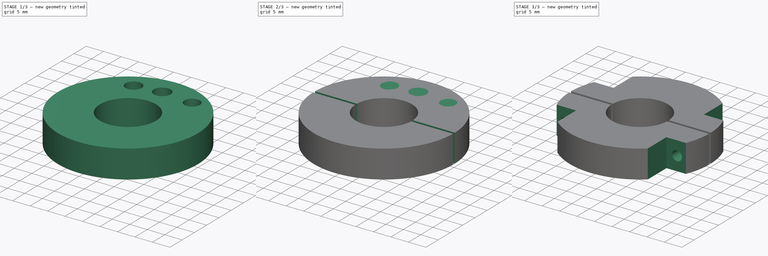
[diagram: build sequence overview — one tinted view per stage of 3, left to right]
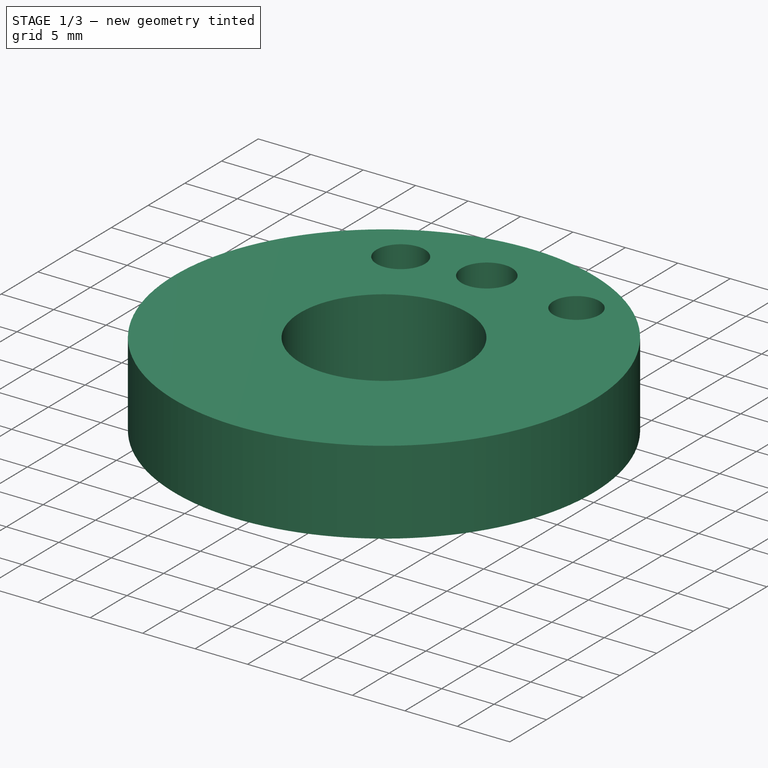
[diagram: stage 1 of 3 — iso view after this stage's code; geometry added in this stage tinted green]
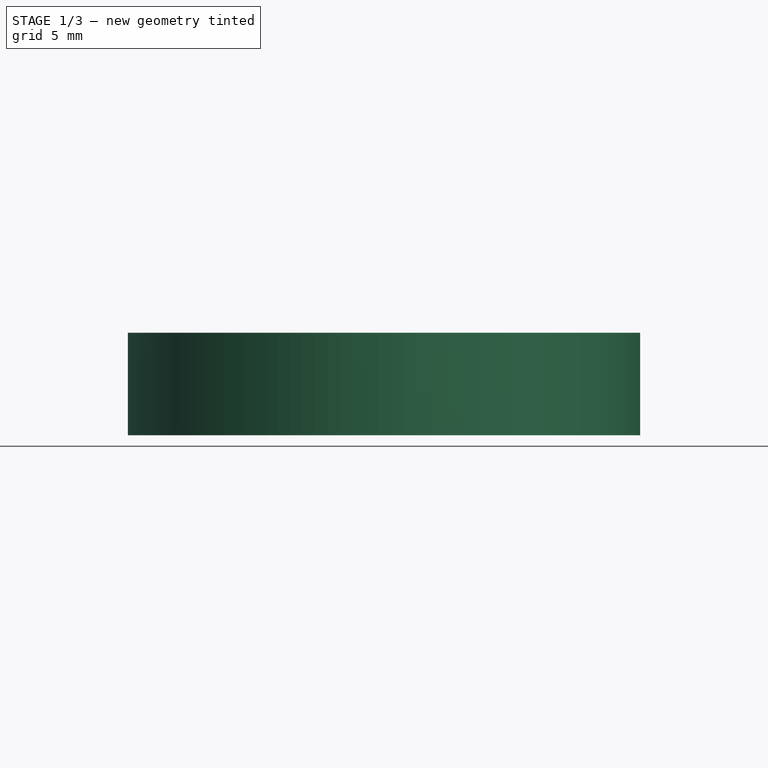
[diagram: stage 1 of 3 — front view after this stage's code; geometry added in this stage tinted green]
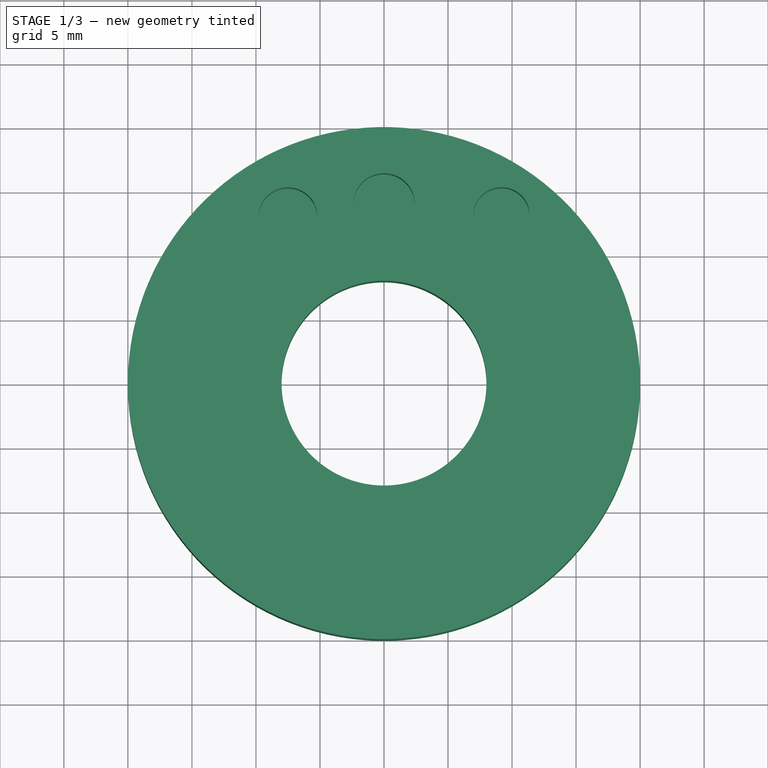
[diagram: stage 1 of 3 — top view after this stage's code; geometry added in this stage tinted green]
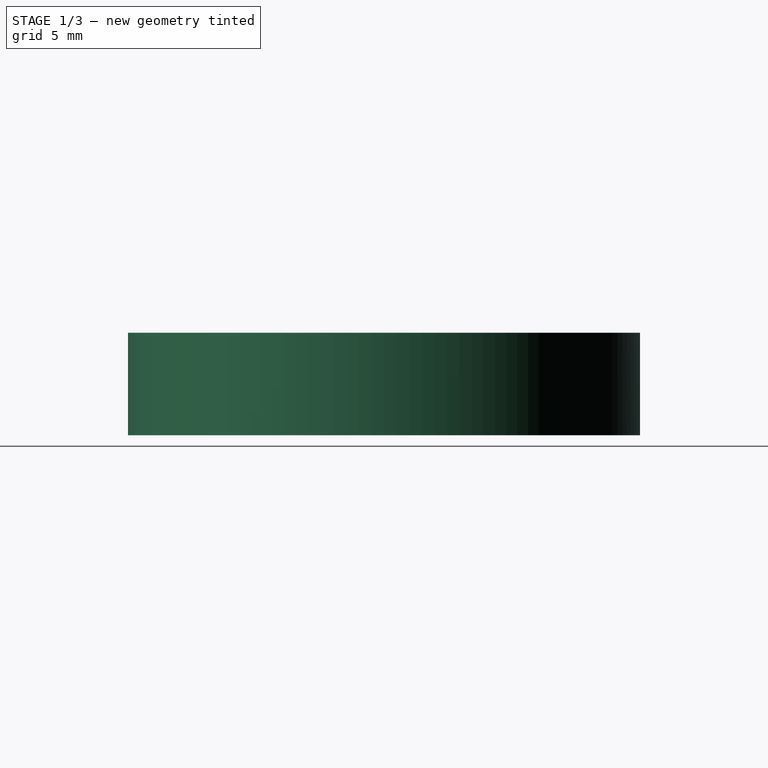
[diagram: stage 1 of 3 — right view after this stage's code; geometry added in this stage tinted green]
FCSTD DOCUMENT  (FreeCAD 0.19R)
Label: 3.9mmX16
License: All rights reserved
LicenseURL: http://en.wikipedia.org/wiki/All_rights_reserved
objects: Sketcher::SketchObject×8, PartDesign::Pocket×4, PartDesign::Pad×2, PartDesign::Mirrored×1, PartDesign::Body×1
note: 22 computed .brp shape members not serialized (recipe doc carries the construction recipe); baked Part::Feature solids carry a one-line shape summary decoded from their .brp

FEATURE [Sketcher::SketchObject] Sketch
  FullyConstrained = true
  MapMode = 5
  Support = -> [XY_Plane]
  sketch-geometry (2):
    g0: Circle CenterX=0 CenterY=0 CenterZ=0 NormalX=0 NormalY=0 NormalZ=1 AngleXU=0 Radius=20
    g1: Circle CenterX=0 CenterY=0 CenterZ=0 NormalX=0 NormalY=0 NormalZ=1 AngleXU=0 Radius=8
  constraints (4):
    c: Coincident(g0,g-1)
    c: Diameter(g0) = 40
    c: Diameter(g1) = 16
    c: Coincident(g1,g0)
FEATURE [PartDesign::Pad] Pad
  Direction = (1,1,1)
  Length = 8
  Length2 = 100
  Profile = -> Sketch
  Type = 0
FEATURE [Sketcher::SketchObject] Sketch001
  FullyConstrained = false
  MapMode = 5
  Placement = pos=(0,0,8) rot=(0,0,1;0rad)
  Support = -> [Pad]
  sketch-geometry (9):
    g0: Circle CenterX=0 CenterY=14 CenterZ=0 NormalX=0 NormalY=0 NormalZ=1 AngleXU=0 Radius=2.4
    g1: Circle CenterX=0 CenterY=14 CenterZ=0 NormalX=0 NormalY=0 NormalZ=1 AngleXU=0 Radius=1.95
    g2: LineSegment StartX=0 StartY=0 StartZ=0 EndX=14.6081 EndY=20.8625 EndZ=0
    g3: LineSegment StartX=0 StartY=0 StartZ=0 EndX=-13.7602 EndY=23.8334 EndZ=0
    g4: Circle CenterX=-7.5 CenterY=12.9904 CenterZ=0 NormalX=0 NormalY=0 NormalZ=1 AngleXU=0 Radius=2.3
    g5: Circle CenterX=-17.0837 CenterY=37.5687 CenterZ=0 NormalX=0 NormalY=0 NormalZ=1 AngleXU=0 Radius=1.63074
    g6: Circle CenterX=9.57396 CenterY=39.2298 CenterZ=0 NormalX=0 NormalY=0 NormalZ=1 AngleXU=0 Radius=1.49251
    g7: Circle CenterX=9.17722 CenterY=13.1064 CenterZ=0 NormalX=0 NormalY=0 NormalZ=1 AngleXU=0 Radius=2.2
    g8: Circle CenterX=30.1407 CenterY=32.9016 CenterZ=0 NormalX=0 NormalY=0 NormalZ=1 AngleXU=0 Radius=1.82108
  constraints (15):
    c: PointOnObject(g0,g-2)
    c: DistanceY(g0) = 14
    c: Diameter(g0) = 4.8
    c: Diameter(g1) = 3.9
    c: Coincident(g1,g0)
    c: Coincident(g2,g-1)
    c: Coincident(g3,g2)
    c: PointOnObject(g7,g2)
    c: PointOnObject(g4,g3)
    c: Distance(g-1,g4) = 15
    c: Distance(g-1,g7) = 16
    c: Angle(g3) = 2.0944
    c: Angle(g2) = 0.959931
    c: Diameter(g4) = 4.6
    c: Diameter(g7) = 4.4
FEATURE [PartDesign::Pocket] Pocket
  BaseFeature = -> Pad
  Length = 6
  Length2 = 100
  Profile = -> Sketch001
  Type = 0
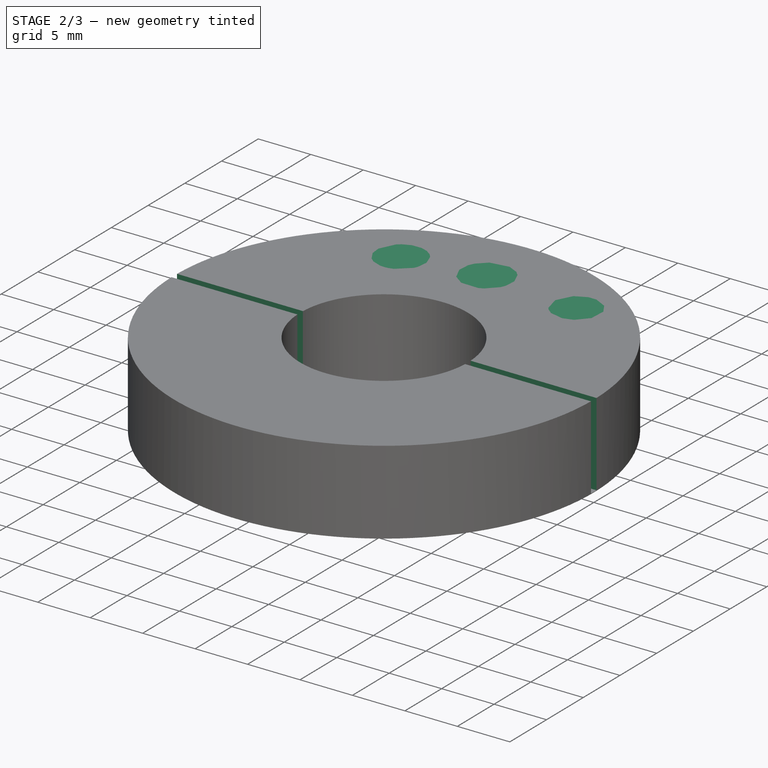
[diagram: stage 2 of 3 — iso view after this stage's code; geometry added in this stage tinted green]
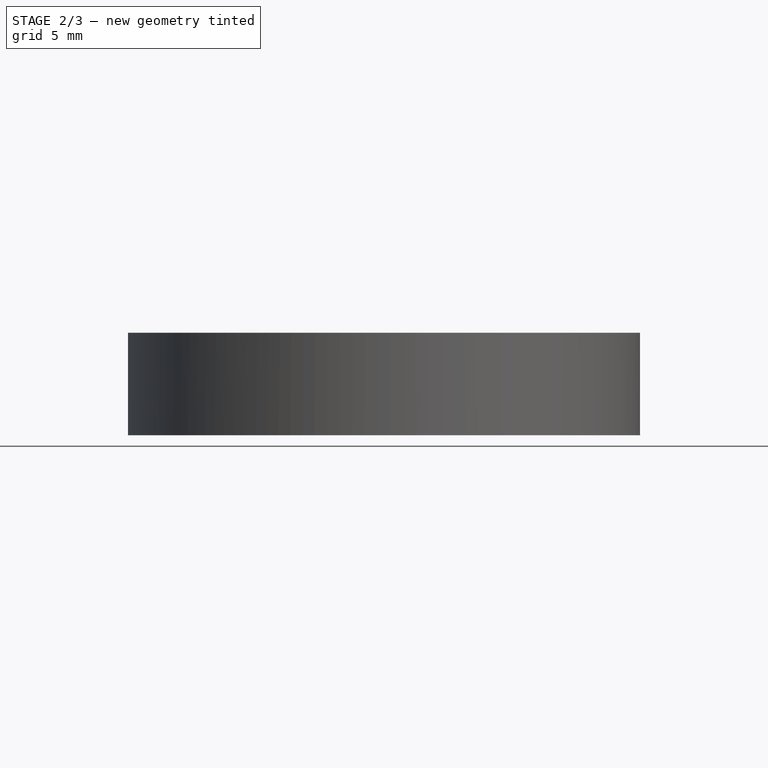
[diagram: stage 2 of 3 — front view after this stage's code; geometry added in this stage tinted green]
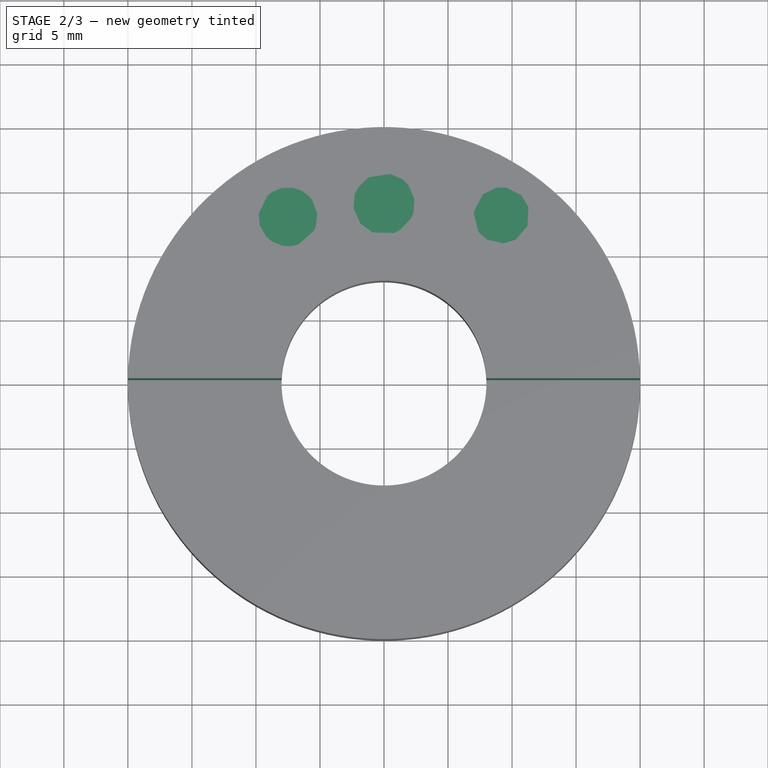
[diagram: stage 2 of 3 — top view after this stage's code; geometry added in this stage tinted green]
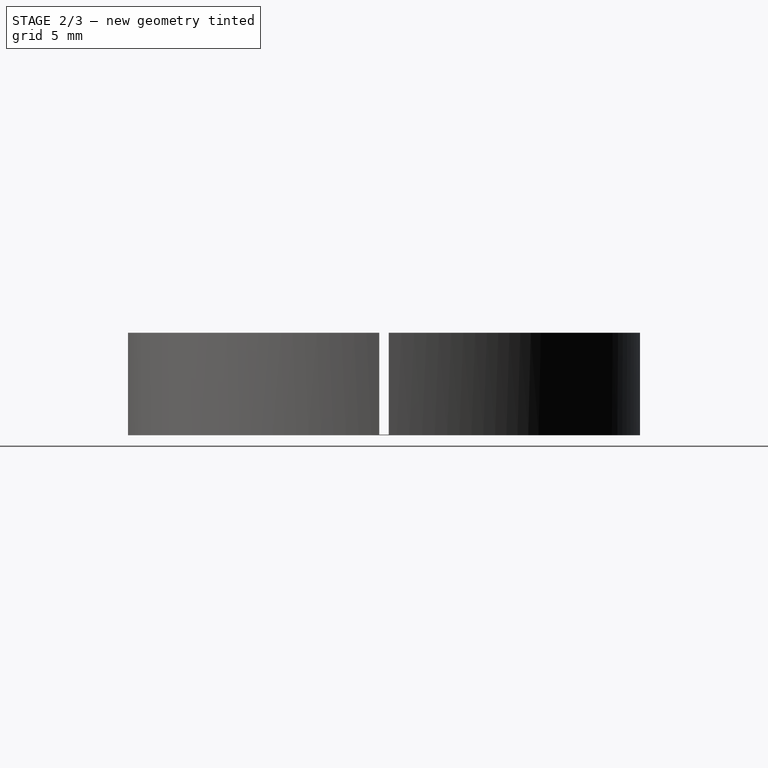
[diagram: stage 2 of 3 — right view after this stage's code; geometry added in this stage tinted green]
FEATURE [Sketcher::SketchObject] Sketch002  label="lid"
  FullyConstrained = false
  MapMode = 5
  Placement = pos=(0,0,8) rot=(0,0,1;0rad)
  sketch-geometry (2):
    g0: Circle CenterX=0 CenterY=0 CenterZ=0 NormalX=0 NormalY=0 NormalZ=1 AngleXU=0 Radius=19.1323
    g1: Circle CenterX=0 CenterY=0 CenterZ=0 NormalX=0 NormalY=0 NormalZ=1 AngleXU=0 Radius=8.42441
  constraints (2):
    c: Coincident(g0,g-1)
    c: Coincident(g1,g0)
FEATURE [Sketcher::SketchObject] Sketch003  label="slice"
  FullyConstrained = false
  MapMode = 5
  Placement = pos=(0,0,8) rot=(0,0,1;0rad)
  sketch-geometry (4):
    g0: LineSegment StartX=-22.2478 StartY=0.375 StartZ=0 EndX=20.7748 EndY=0.375 EndZ=0
    g1: LineSegment StartX=20.7748 StartY=0.375 StartZ=0 EndX=20.7748 EndY=-0.375 EndZ=0
    g2: LineSegment StartX=20.7748 StartY=-0.375 StartZ=0 EndX=-22.2478 EndY=-0.375 EndZ=0
    g3: LineSegment StartX=-22.2478 StartY=-0.375 StartZ=0 EndX=-22.2478 EndY=0.375 EndZ=0
  constraints (9):
    c: Coincident(g0,g1)
    c: Coincident(g1,g2)
    c: Coincident(g2,g3)
    c: Coincident(g3,g0)
    c: Horizontal(g0)
    c: Horizontal(g2)
    c: Vertical(g3)
    c: Distance(g1) = 0.75
    c: Symmetric(g1,g0,g-1)
FEATURE [Sketcher::SketchObject] Sketch007  label="notches"
  FullyConstrained = false
  MapMode = 5
  Placement = pos=(0,0,8) rot=(0,0,1;0rad)
  sketch-geometry (16):
    g0: LineSegment StartX=-20.5587 StartY=-7.65293 StartZ=0 EndX=-12.9211 EndY=-7.65293 EndZ=0
    g1: LineSegment StartX=-12.9211 StartY=-7.65293 StartZ=0 EndX=-12.9211 EndY=-18.5136 EndZ=0
    g2: LineSegment StartX=-12.9211 StartY=-18.5136 StartZ=0 EndX=-20.5587 EndY=-18.5136 EndZ=0
    g3: LineSegment StartX=-20.5587 StartY=-18.5136 StartZ=0 EndX=-20.5587 EndY=-7.65293 EndZ=0
    g4: LineSegment StartX=-21.1657 StartY=19.7081 StartZ=0 EndX=-12.9211 EndY=19.7081 EndZ=0
    g5: LineSegment StartX=-12.9211 StartY=19.7081 StartZ=0 EndX=-12.9211 EndY=7.65293 EndZ=0
    g6: LineSegment StartX=-12.9211 StartY=7.65293 StartZ=0 EndX=-21.1657 EndY=7.65293 EndZ=0
    g7: LineSegment StartX=-21.1657 StartY=7.65293 StartZ=0 EndX=-21.1657 EndY=19.7081 EndZ=0
    g8: LineSegment StartX=12.9211 StartY=18.5942 StartZ=0 EndX=21.451 EndY=18.5942 EndZ=0
    g9: LineSegment StartX=21.451 StartY=18.5942 StartZ=0 EndX=21.451 EndY=7.65293 EndZ=0
    g10: LineSegment StartX=21.451 StartY=7.65293 StartZ=0 EndX=12.9211 EndY=7.65293 EndZ=0
    g11: LineSegment StartX=12.9211 StartY=7.65293 StartZ=0 EndX=12.9211 EndY=18.5942 EndZ=0
    g12: LineSegment StartX=12.9211 StartY=-7.65293 StartZ=0 EndX=24.754 EndY=-7.65293 EndZ=0
    g13: LineSegment StartX=24.754 StartY=-7.65293 StartZ=0 EndX=24.754 EndY=-18.3213 EndZ=0
    g14: LineSegment StartX=24.754 StartY=-18.3213 StartZ=0 EndX=12.9211 EndY=-18.3213 EndZ=0
    g15: LineSegment StartX=12.9211 StartY=-18.3213 StartZ=0 EndX=12.9211 EndY=-7.65293 EndZ=0
  constraints (35):
    c: Coincident(g0,g1)
    c: Coincident(g1,g2)
    c: Coincident(g2,g3)
    c: Coincident(g3,g0)
    c: Horizontal(g0)
    c: Horizontal(g2)
    c: Vertical(g1)
    c: Vertical(g3)
    c: Coincident(g4,g5)
    c: Coincident(g5,g6)
    c: Coincident(g6,g7)
    c: Coincident(g7,g4)
    c: Horizontal(g4)
    c: Horizontal(g6)
    c: Vertical(g5)
    c: Vertical(g7)
    c: Coincident(g8,g9)
    c: Coincident(g9,g10)
    c: Coincident(g10,g11)
    c: Coincident(g11,g8)
    c: Horizontal(g8)
    c: Horizontal(g10)
    c: Vertical(g9)
    c: Vertical(g11)
    c: Coincident(g12,g13)
    c: Coincident(g13,g14)
    c: Coincident(g14,g15)
    c: Coincident(g15,g12)
    c: Horizontal(g12)
    c: Horizontal(g14)
    c: Vertical(g13)
    c: Vertical(g15)
    c: Symmetric(g12,g0,g-2)
    c: Symmetric(g10,g0,g-1)
    c: Symmetric(g5,g12,g-1)
FEATURE [PartDesign::Mirrored] Mirrored
  BaseFeature = -> Pocket
  MirrorPlane = -> Sketch001 [H_Axis]
  Originals = -> [Pocket]
FEATURE [PartDesign::Pad] Pad001
  BaseFeature = -> Mirrored
  Direction = (1,1,1)
  Length = 1.5
  Length2 = 100
  Profile = -> Sketch002
  Reversed = true
  Type = 0
FEATURE [PartDesign::Pocket] Pocket001
  BaseFeature = -> Pad001
  Length = 7.95
  Length2 = 100
  Profile = -> Sketch003
  Type = 0
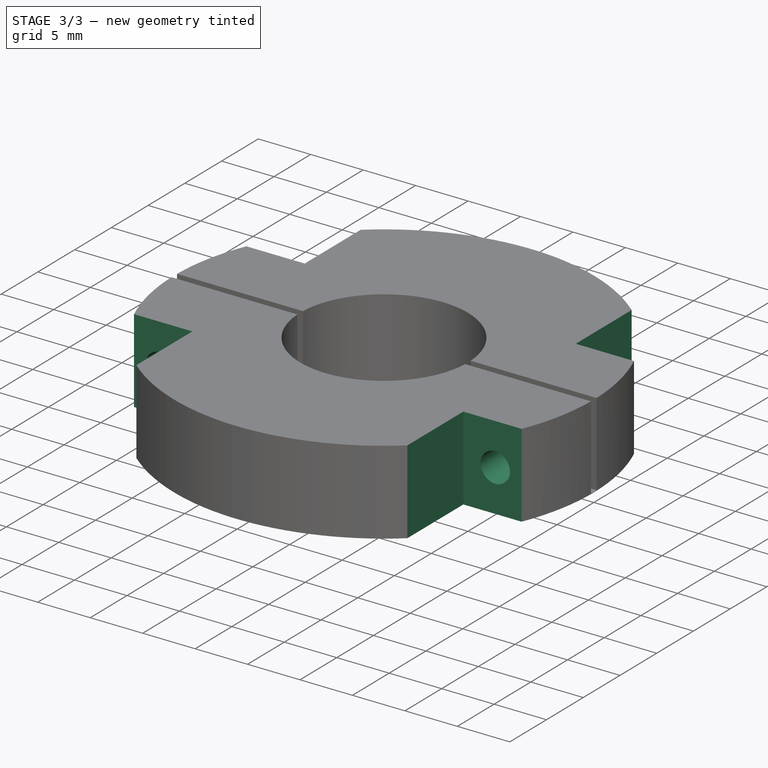
[diagram: stage 3 of 3 — iso view after this stage's code; geometry added in this stage tinted green]
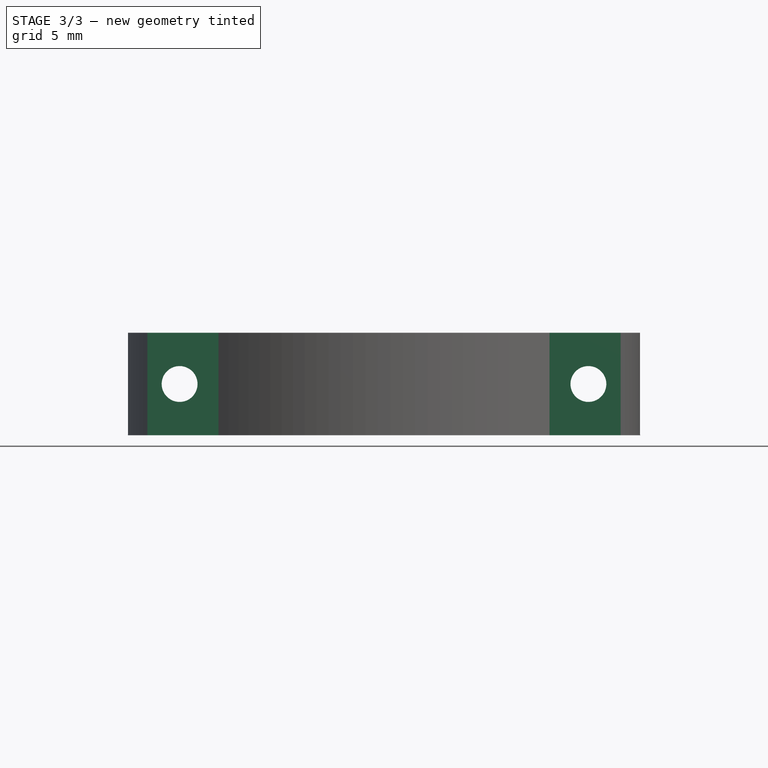
[diagram: stage 3 of 3 — front view after this stage's code; geometry added in this stage tinted green]
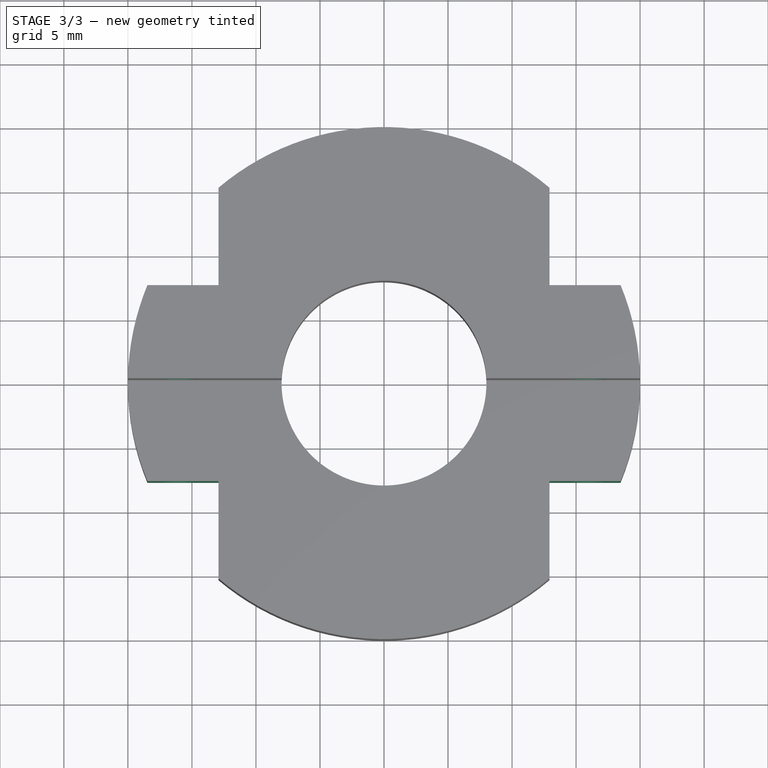
[diagram: stage 3 of 3 — top view after this stage's code; geometry added in this stage tinted green]
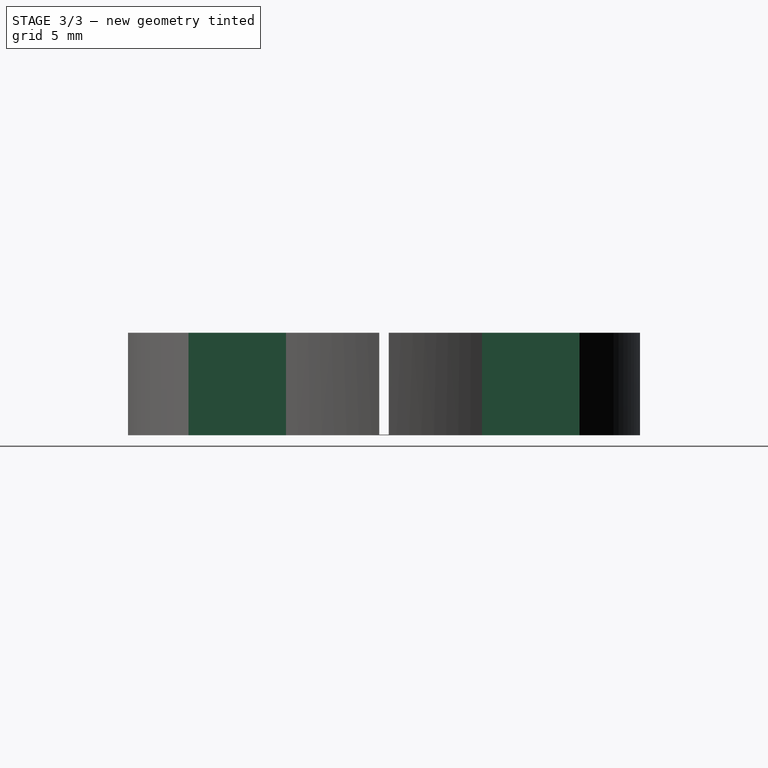
[diagram: stage 3 of 3 — right view after this stage's code; geometry added in this stage tinted green]
FEATURE [PartDesign::Pocket] Pocket002
  BaseFeature = -> Pocket001
  Length = 5
  Length2 = 100
  Profile = -> Sketch007
  Type = 1
FEATURE [Sketcher::SketchObject] Sketch008  label="ScrewHoles"
  FullyConstrained = false
  MapMode = 5
  Placement = pos=(0,7.65293,0) rot=(0,0.707107,0.707107;3.14159rad)
  Support = -> [Pocket002]
  sketch-geometry (2):
    g0: Circle CenterX=-15.9634 CenterY=4 CenterZ=0 NormalX=0 NormalY=0 NormalZ=1 AngleXU=0 Radius=1.4
    g1: Circle CenterX=15.9634 CenterY=4 CenterZ=0 NormalX=0 NormalY=0 NormalZ=1 AngleXU=0 Radius=1.4
  constraints (4):
    c: Symmetric(g0,g1,g-2)
    c: DistanceY(g1) = 4
    c: Diameter(g1) = 2.8
    c: Diameter(g0) = 2.8
FEATURE [PartDesign::Pocket] Pocket003
  BaseFeature = -> Pocket002
  Length = 5
  Length2 = 100
  Profile = -> Sketch008
  Type = 1
FEATURE [Sketcher::SketchObject] Sketch009  label="holeCS"
  FullyConstrained = false
  MapMode = 5
  Placement = pos=(0,7.65293,0) rot=(0,0.707107,0.707107;3.14159rad)
  Support = -> [Pocket003]
  sketch-geometry (2):
    g0: Circle CenterX=-15.998 CenterY=4 CenterZ=0 NormalX=0 NormalY=0 NormalZ=1 AngleXU=0 Radius=1.75
    g1: Circle CenterX=15.998 CenterY=4 CenterZ=0 NormalX=0 NormalY=0 NormalZ=1 AngleXU=0 Radius=1.75
  constraints (4):
    c: Diameter(g0) = 3.5
    c: Equal(g0,g1)
    c: Symmetric(g1,g0,g-2)
    c: DistanceY(g1) = 4
FEATURE [Sketcher::SketchObject] Sketch010
  FullyConstrained = false
  MapMode = 5
  Placement = pos=(0,0,8) rot=(0,0,1;0rad)
  sketch-geometry (1):
    g0: Circle CenterX=-15.2077 CenterY=-3.58105 CenterZ=0 NormalX=0 NormalY=0 NormalZ=1 AngleXU=0 Radius=1.01783
FEATURE [PartDesign::Body] Body
  Group = -> [Sketch,Pad,Sketch001,Pocket,Sketch002,Sketch003,Sketch007,Mirrored,Pad001,Pocket001,Pocket002,Sketch008,Pocket003,Sketch009,Sketch010]
  Origin = -> Origin
  Tip = -> Pocket003
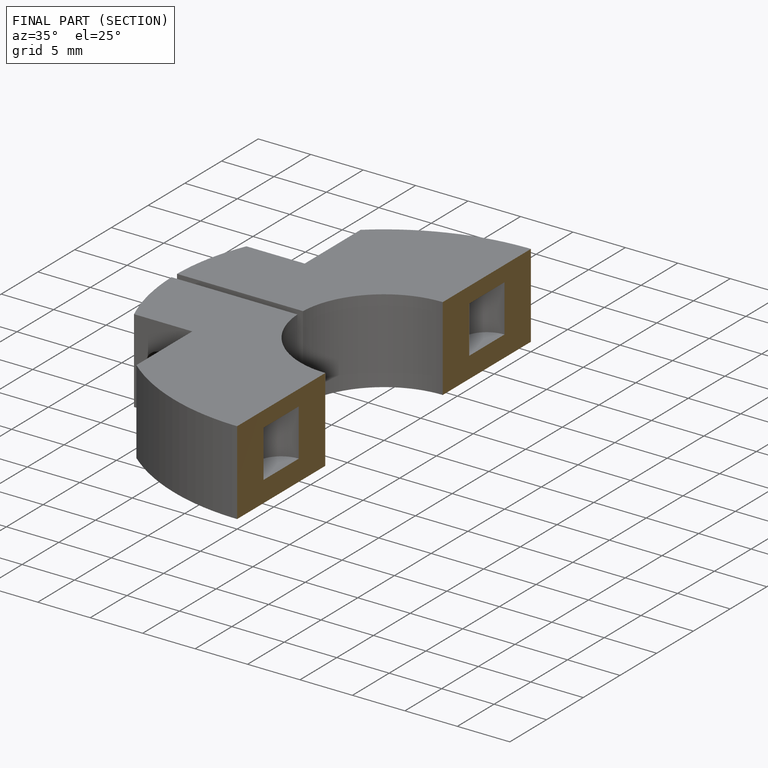
[diagram: finished part — half-section view (interior)]
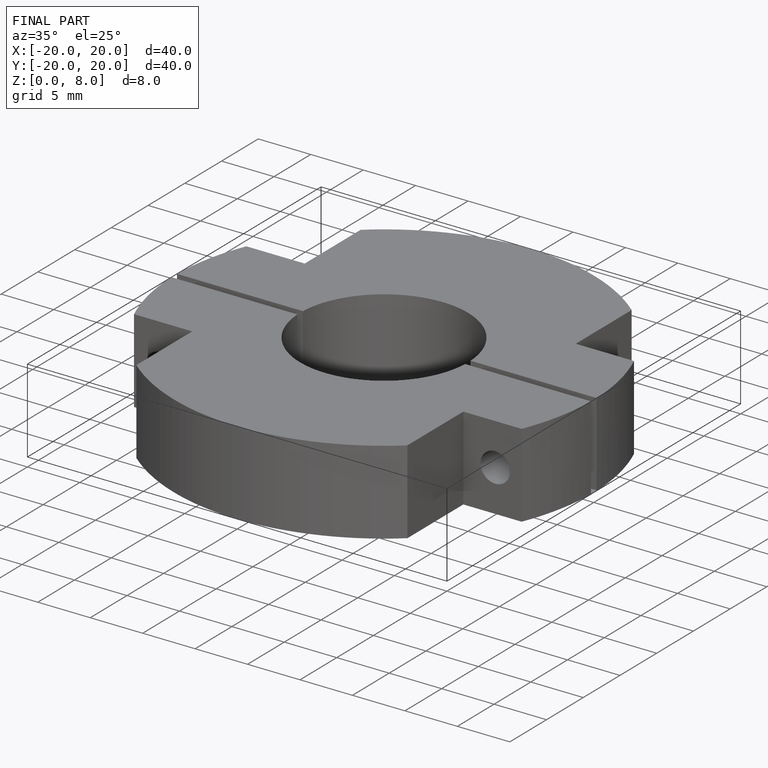
[diagram: finished part — iso view with bounding-box wireframe]
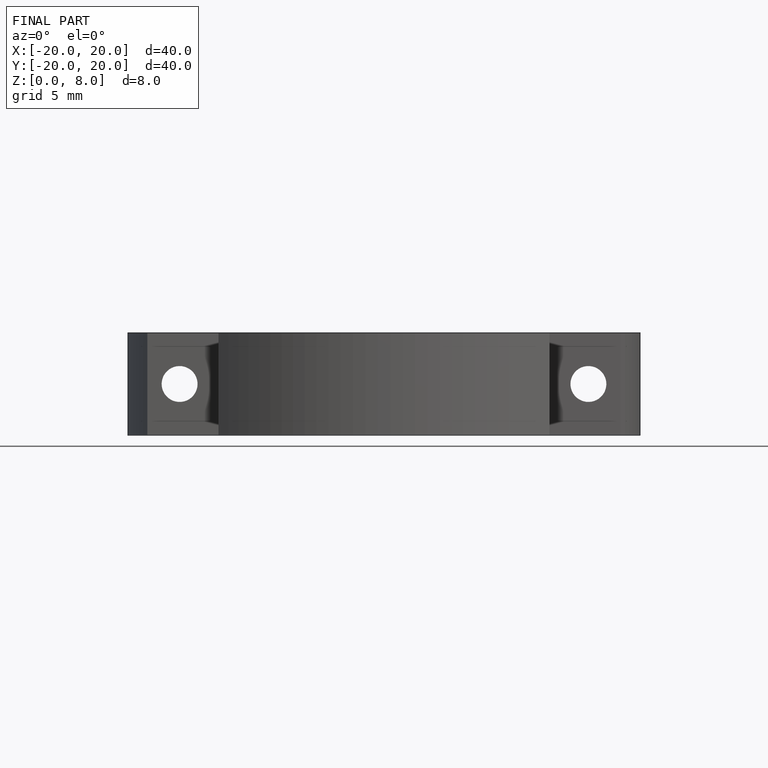
[diagram: finished part — front view with bounding-box wireframe]
